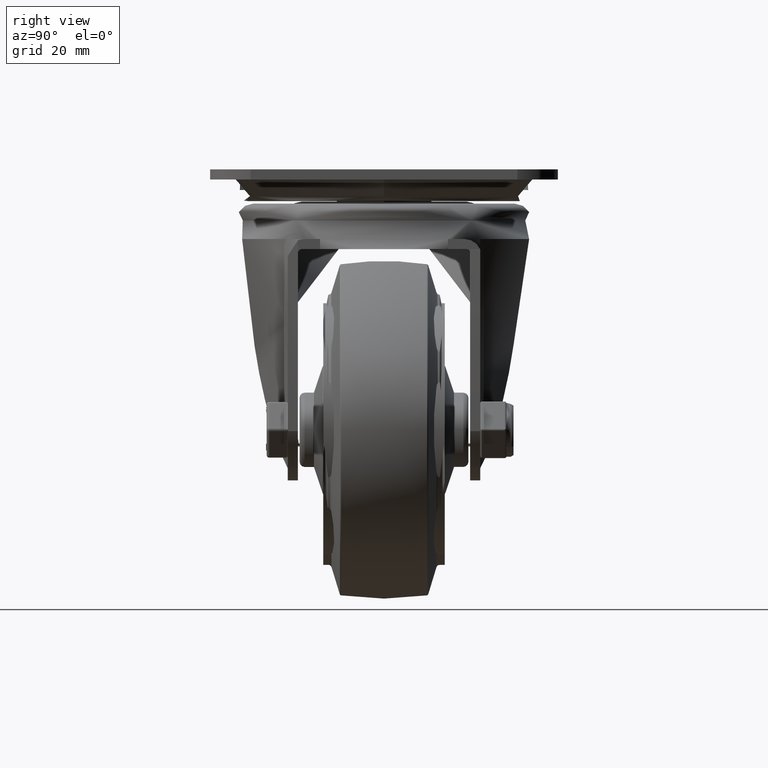
[diagram: clean part render]
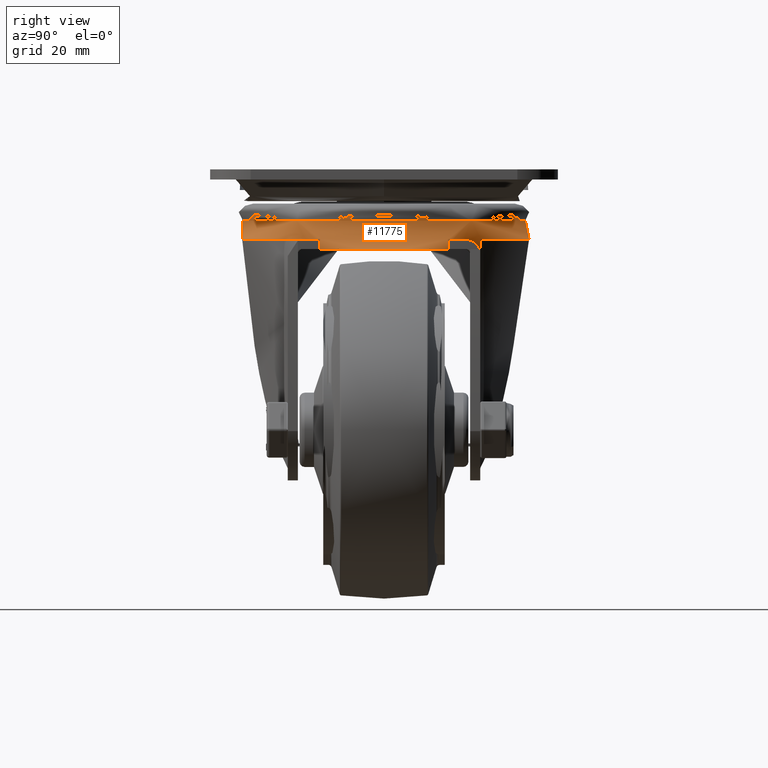
[diagram: same view with one face highlighted and labeled with its STEP entity id]
A machine part, right view. The second image highlights one B-rep face of the part: STEP entity #11775.
In plain terms, the highlighted cylindrical surface (bore or boss wall) has radius 44 mm, axis along (0, 0, 1).
Its self-contained STEP definition (entity closure, byte-faithful):
#861=B_SPLINE_CURVE_WITH_KNOTS('',3,(#16737,#16738,#16739,#16740,#16741,
#16742,#16743,#16744),.UNSPECIFIED.,.F.,.F.,(4,2,2,4),(-0.848624848383157,
-0.613011995335325,-0.377399142287493,-0.203155399129932),.UNSPECIFIED.);
#1444=LINE('',#16721,#2181);
#1445=LINE('',#16729,#2182);
#1446=LINE('',#16733,#2183);
#1447=LINE('',#16746,#2184);
#2181=VECTOR('',#13815,44.);
#2182=VECTOR('',#13822,1.);
#2183=VECTOR('',#13825,1.);
#2184=VECTOR('',#13828,1.);
#2917=CYLINDRICAL_SURFACE('',#12705,44.);
#3135=FACE_OUTER_BOUND('',#3872,.T.);
#3872=EDGE_LOOP('',(#8206,#8207,#8208,#8209,#8210,#8211,#8212,#8213,#8214,
#8215,#8216,#8217,#8218,#8219,#8220));
#4768=CIRCLE('',#12702,44.);
#4771=CIRCLE('',#12706,44.);
#4772=CIRCLE('',#12707,44.);
#4773=CIRCLE('',#12708,44.);
#4774=CIRCLE('',#12709,44.);
#4775=CIRCLE('',#12710,44.);
#4776=CIRCLE('',#12711,44.);
#4777=CIRCLE('',#12712,43.9978996501855);
#4778=CIRCLE('',#12713,44.);
#5227=VERTEX_POINT('',#16714);
#5229=VERTEX_POINT('',#16720);
#5230=VERTEX_POINT('',#16722);
#5231=VERTEX_POINT('',#16724);
#5232=VERTEX_POINT('',#16726);
#5233=VERTEX_POINT('',#16728);
#5234=VERTEX_POINT('',#16730);
#5235=VERTEX_POINT('',#16732);
#5236=VERTEX_POINT('',#16734);
#5237=VERTEX_POINT('',#16736);
#5238=VERTEX_POINT('',#16745);
#5239=VERTEX_POINT('',#16747);
#5240=VERTEX_POINT('',#16749);
#6408=EDGE_CURVE('',#5227,#5227,#4768,.T.);
#6411=EDGE_CURVE('',#5227,#5229,#1444,.T.);
#6412=EDGE_CURVE('',#5230,#5229,#4771,.T.);
#6413=EDGE_CURVE('',#5231,#5230,#4772,.T.);
#6414=EDGE_CURVE('',#5232,#5231,#4773,.T.);
#6415=EDGE_CURVE('',#5233,#5232,#1445,.T.);
#6416=EDGE_CURVE('',#5234,#5233,#4774,.T.);
#6417=EDGE_CURVE('',#5235,#5234,#1446,.T.);
#6418=EDGE_CURVE('',#5236,#5235,#4775,.T.);
#6419=EDGE_CURVE('',#5236,#5237,#861,.T.);
#6420=EDGE_CURVE('',#5238,#5237,#1447,.T.);
#6421=EDGE_CURVE('',#5238,#5239,#4776,.T.);
#6422=EDGE_CURVE('',#5240,#5239,#4777,.T.);
#6423=EDGE_CURVE('',#5229,#5240,#4778,.T.);
#8206=ORIENTED_EDGE('',*,*,#6408,.T.);
#8207=ORIENTED_EDGE('',*,*,#6411,.T.);
#8208=ORIENTED_EDGE('',*,*,#6412,.F.);
#8209=ORIENTED_EDGE('',*,*,#6413,.F.);
#8210=ORIENTED_EDGE('',*,*,#6414,.F.);
#8211=ORIENTED_EDGE('',*,*,#6415,.F.);
#8212=ORIENTED_EDGE('',*,*,#6416,.F.);
#8213=ORIENTED_EDGE('',*,*,#6417,.F.);
#8214=ORIENTED_EDGE('',*,*,#6418,.F.);
#8215=ORIENTED_EDGE('',*,*,#6419,.T.);
#8216=ORIENTED_EDGE('',*,*,#6420,.F.);
#8217=ORIENTED_EDGE('',*,*,#6421,.T.);
#8218=ORIENTED_EDGE('',*,*,#6422,.F.);
#8219=ORIENTED_EDGE('',*,*,#6423,.F.);
#8220=ORIENTED_EDGE('',*,*,#6411,.F.);
#11775=ADVANCED_FACE('',(#3135),#2917,.T.);
#12702=AXIS2_PLACEMENT_3D('',#16715,#13807,#13808);
#12705=AXIS2_PLACEMENT_3D('',#16719,#13813,#13814);
#12706=AXIS2_PLACEMENT_3D('',#16723,#13816,#13817);
#12707=AXIS2_PLACEMENT_3D('',#16725,#13818,#13819);
#12708=AXIS2_PLACEMENT_3D('',#16727,#13820,#13821);
#12709=AXIS2_PLACEMENT_3D('',#16731,#13823,#13824);
#12710=AXIS2_PLACEMENT_3D('',#16735,#13826,#13827);
#12711=AXIS2_PLACEMENT_3D('',#16748,#13829,#13830);
#12712=AXIS2_PLACEMENT_3D('',#16750,#13831,#13832);
#12713=AXIS2_PLACEMENT_3D('',#16751,#13833,#13834);
#13807=DIRECTION('center_axis',(0.,0.,-1.));
#13808=DIRECTION('ref_axis',(-1.,0.,0.));
#13813=DIRECTION('center_axis',(0.,0.,1.));
#13814=DIRECTION('ref_axis',(-1.,0.,0.));
#13815=DIRECTION('',(0.,0.,-1.));
#13816=DIRECTION('center_axis',(0.,0.,-1.));
#13817=DIRECTION('ref_axis',(-1.,0.,0.));
#13818=DIRECTION('center_axis',(0.,0.,-1.));
#13819=DIRECTION('ref_axis',(-1.,0.,0.));
#13820=DIRECTION('center_axis',(0.,0.,-1.));
#13821=DIRECTION('ref_axis',(-1.,0.,0.));
#13822=DIRECTION('',(0.,0.,1.));
#13823=DIRECTION('center_axis',(0.,0.,-1.));
#13824=DIRECTION('ref_axis',(1.,0.,0.));
#13825=DIRECTION('',(0.,0.,-1.));
#13826=DIRECTION('center_axis',(0.,0.,-1.));
#13827=DIRECTION('ref_axis',(-1.,0.,0.));
#13828=DIRECTION('',(0.,0.,-1.));
#13829=DIRECTION('center_axis',(0.,0.,1.));
#13830=DIRECTION('ref_axis',(-1.,0.,0.));
#13831=DIRECTION('center_axis',(0.,0.,-1.));
#13832=DIRECTION('ref_axis',(0.896680881662884,-0.442677531009056,0.));
#13833=DIRECTION('center_axis',(0.,0.,-1.));
#13834=DIRECTION('ref_axis',(-1.,0.,0.));
#16714=CARTESIAN_POINT('',(-37.096693940411,195.278189306354,-15.1312605821944));
#16715=CARTESIAN_POINT('Origin',(-81.096693940411,195.278189306354,-15.1312605821944));
#16719=CARTESIAN_POINT('Origin',(-81.096693940411,195.278189306354,4.09807510342608));
#16720=CARTESIAN_POINT('',(-37.096693940411,195.278189306354,-20.6312605821945));
#16721=CARTESIAN_POINT('',(-37.096693940411,195.278189306354,4.09807510342608));
#16722=CARTESIAN_POINT('',(-41.6427472721712,214.756025230801,-20.6312605821945));
#16723=CARTESIAN_POINT('Origin',(-81.096693940411,195.278189306354,-20.6312605821945));
#16724=CARTESIAN_POINT('',(-118.295484243323,218.778189306354,-20.6312605821945));
#16725=CARTESIAN_POINT('Origin',(-81.096693940411,195.278189306354,-20.6312605821945));
#16726=CARTESIAN_POINT('',(-120.799433058751,214.243750371111,-20.6312605821945));
#16727=CARTESIAN_POINT('Origin',(-81.096693940411,195.278189306354,-20.6312605821945));
#16728=CARTESIAN_POINT('',(-120.799433058751,214.243750371111,-23.6312605821945));
#16729=CARTESIAN_POINT('',(-120.799433058751,214.243750371111,4.09807510342608));
#16730=CARTESIAN_POINT('',(-120.799433058751,176.312628241596,-23.6312605821945));
#16731=CARTESIAN_POINT('Origin',(-81.096693940411,195.278189306354,-23.6312605821945));
#16732=CARTESIAN_POINT('',(-120.799433058751,176.312628241596,-20.6312605821945));
#16733=CARTESIAN_POINT('',(-120.799433058751,176.312628241596,4.09807510342608));
#16734=CARTESIAN_POINT('',(-118.02847990606,171.36076500131,-20.6312605821945));
#16735=CARTESIAN_POINT('Origin',(-81.096693940411,195.278189306354,-20.6312605821945));
#16736=CARTESIAN_POINT('',(-114.619074524135,166.778189306354,-23.6312605821945));
#16737=CARTESIAN_POINT('Ctrl Pts',(-118.02847990606,171.36076500131,-20.6312605821945));
#16738=CARTESIAN_POINT('Ctrl Pts',(-117.601566831964,170.701552618013,-20.6312605821945));
#16739=CARTESIAN_POINT('Ctrl Pts',(-117.123726872623,170.006073893259,-20.7679483169104));
#16740=CARTESIAN_POINT('Ctrl Pts',(-116.191149986885,168.726238828643,-21.3247230402455));
#16741=CARTESIAN_POINT('Ctrl Pts',(-115.736885025657,168.141213879347,-21.7440630967616));
#16742=CARTESIAN_POINT('Ctrl Pts',(-115.083685861696,167.330375010913,-22.6285644365033));
#16743=CARTESIAN_POINT('Ctrl Pts',(-114.816200405144,167.010053474989,-23.0999930303352));
#16744=CARTESIAN_POINT('Ctrl Pts',(-114.619074524135,166.778189306354,-23.6312605821944));
#16745=CARTESIAN_POINT('',(-114.619074524134,166.778189306354,-20.6312605821945));
#16746=CARTESIAN_POINT('',(-114.619074524135,166.778189306354,-20.6312605821945));
#16747=CARTESIAN_POINT('',(-42.1640598142694,174.778189306354,-20.6312605821945));
#16748=CARTESIAN_POINT('Origin',(-81.096693940411,195.278189306354,-20.6312605821945));
#16749=CARTESIAN_POINT('',(-41.6427472721715,175.800353381907,-20.6312605821945));
#16750=CARTESIAN_POINT('Origin',(-81.0948227218146,195.277234968635,-20.6312605821945));
#16751=CARTESIAN_POINT('Origin',(-81.096693940411,195.278189306354,-20.6312605821945));